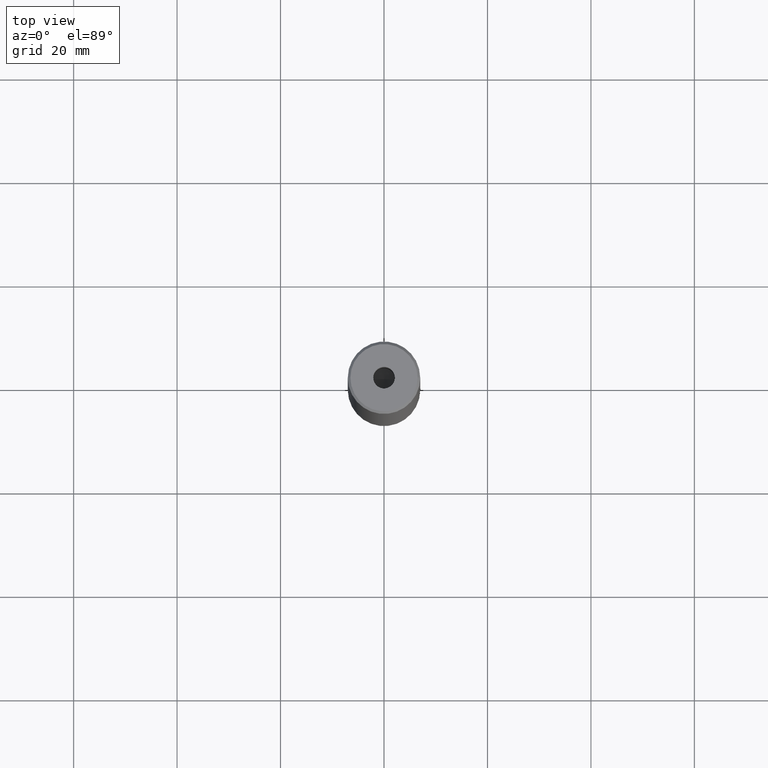
[diagram: clean part render]
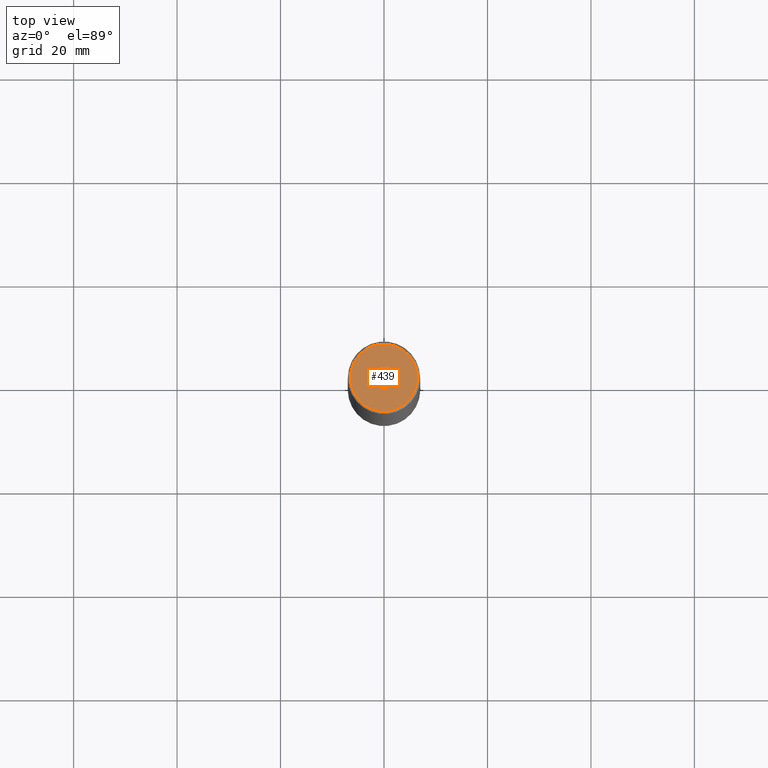
[diagram: same view with one face highlighted and labeled with its STEP entity id]
A machine part, top view. The second image highlights one B-rep face of the part: STEP entity #439.
In plain terms, the highlighted planar face has unit normal (0, -0, 1).
Its self-contained STEP definition (entity closure, byte-faithful):
#12 = EDGE_CURVE ( 'NONE', #223, #296, #436, .T. ) ;
#13 = CARTESIAN_POINT ( 'NONE',  ( -6.500000000000005329, 0.000000000000000000, 0.000000000000000000 ) ) ;
#40 = DIRECTION ( 'NONE',  ( -0.000000000000000000, -0.000000000000000000, 1.000000000000000000 ) ) ;
#44 = FACE_OUTER_BOUND ( 'NONE', #565, .T. ) ;
#49 = CARTESIAN_POINT ( 'NONE',  ( 0.000000000000000000, 0.000000000000000000, -1.990051048614449116E-16 ) ) ;
#51 = ORIENTED_EDGE ( 'NONE', *, *, #566, .T. ) ;
#87 = ORIENTED_EDGE ( 'NONE', *, *, #139, .F. ) ;
#91 = DIRECTION ( 'NONE',  ( 1.000000000000000000, 0.000000000000000000, 0.000000000000000000 ) ) ;
#139 = EDGE_CURVE ( 'NONE', #190, #174, #398, .T. ) ;
#141 = EDGE_LOOP ( 'NONE', ( #383, #87 ) ) ;
#142 = CARTESIAN_POINT ( 'NONE',  ( 0.000000000000000000, 0.000000000000000000, 0.000000000000000000 ) ) ;
#148 = FACE_BOUND ( 'NONE', #141, .T. ) ;
#151 = CARTESIAN_POINT ( 'NONE',  ( 0.000000000000000000, 0.000000000000000000, 0.000000000000000000 ) ) ;
#153 = DIRECTION ( 'NONE',  ( -0.000000000000000000, -0.000000000000000000, 1.000000000000000000 ) ) ;
#154 = CARTESIAN_POINT ( 'NONE',  ( 0.000000000000000000, 0.000000000000000000, 0.000000000000000000 ) ) ;
#157 = DIRECTION ( 'NONE',  ( 1.000000000000000000, 0.000000000000000000, 0.000000000000000000 ) ) ;
#164 = AXIS2_PLACEMENT_3D ( 'NONE', #154, #563, #157 ) ;
#174 = VERTEX_POINT ( 'NONE', #458 ) ;
#190 = VERTEX_POINT ( 'NONE', #286 ) ;
#199 = DIRECTION ( 'NONE',  ( 1.000000000000000000, 0.000000000000000000, 0.000000000000000000 ) ) ;
#223 = VERTEX_POINT ( 'NONE', #13 ) ;
#234 = AXIS2_PLACEMENT_3D ( 'NONE', #547, #40, #91 ) ;
#245 = ORIENTED_EDGE ( 'NONE', *, *, #12, .T. ) ;
#267 = CIRCLE ( 'NONE', #164, 6.500000000000005329 ) ;
#286 = CARTESIAN_POINT ( 'NONE',  ( -2.099999999999998757, 2.571758278209439985E-16, -1.990051048614449116E-16 ) ) ;
#296 = VERTEX_POINT ( 'NONE', #568 ) ;
#321 = AXIS2_PLACEMENT_3D ( 'NONE', #151, #153, #562 ) ;
#323 = CIRCLE ( 'NONE', #471, 2.099999999999998757 ) ;
#383 = ORIENTED_EDGE ( 'NONE', *, *, #546, .F. ) ;
#398 = CIRCLE ( 'NONE', #234, 2.099999999999998757 ) ;
#436 = CIRCLE ( 'NONE', #321, 6.500000000000005329 ) ;
#439 = ADVANCED_FACE ( 'NONE', ( #148, #44 ), #462, .T. ) ;
#458 = CARTESIAN_POINT ( 'NONE',  ( 2.099999999999998757, 0.000000000000000000, -1.990051048614449116E-16 ) ) ;
#462 = PLANE ( 'NONE',  #468 ) ;
#468 = AXIS2_PLACEMENT_3D ( 'NONE', #142, #502, #199 ) ;
#471 = AXIS2_PLACEMENT_3D ( 'NONE', #49, #554, #539 ) ;
#502 = DIRECTION ( 'NONE',  ( 0.000000000000000000, -0.000000000000000000, 1.000000000000000000 ) ) ;
#539 = DIRECTION ( 'NONE',  ( 1.000000000000000000, 0.000000000000000000, 0.000000000000000000 ) ) ;
#546 = EDGE_CURVE ( 'NONE', #174, #190, #323, .T. ) ;
#547 = CARTESIAN_POINT ( 'NONE',  ( 0.000000000000000000, 0.000000000000000000, -1.990051048614449116E-16 ) ) ;
#554 = DIRECTION ( 'NONE',  ( -0.000000000000000000, -0.000000000000000000, 1.000000000000000000 ) ) ;
#562 = DIRECTION ( 'NONE',  ( 1.000000000000000000, 0.000000000000000000, 0.000000000000000000 ) ) ;
#563 = DIRECTION ( 'NONE',  ( -0.000000000000000000, -0.000000000000000000, 1.000000000000000000 ) ) ;
#565 = EDGE_LOOP ( 'NONE', ( #245, #51 ) ) ;
#566 = EDGE_CURVE ( 'NONE', #296, #223, #267, .T. ) ;
#568 = CARTESIAN_POINT ( 'NONE',  ( 6.500000000000005329, 8.266365894244638278E-16, 0.000000000000000000 ) ) ;